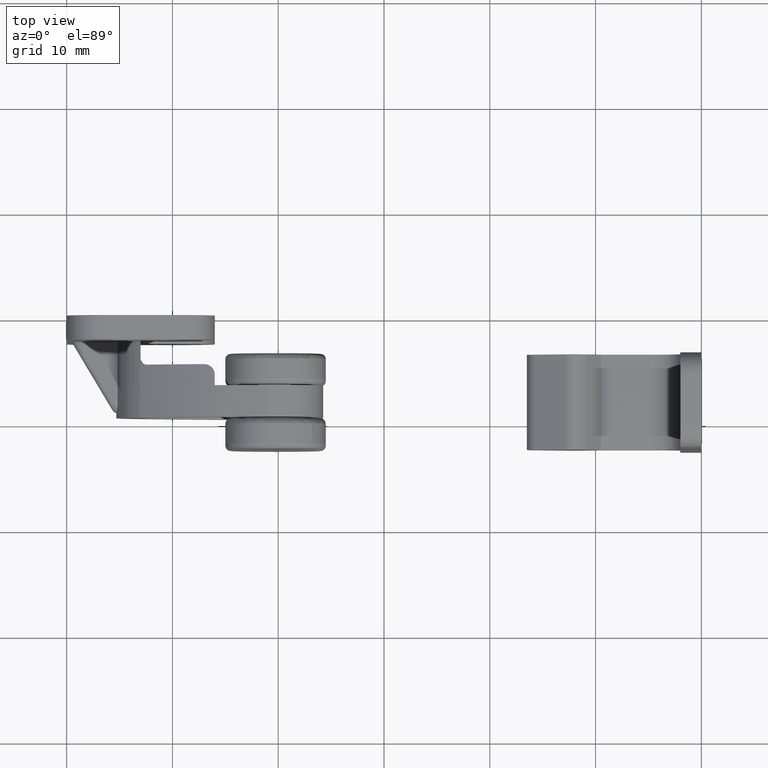
[diagram: clean part render]
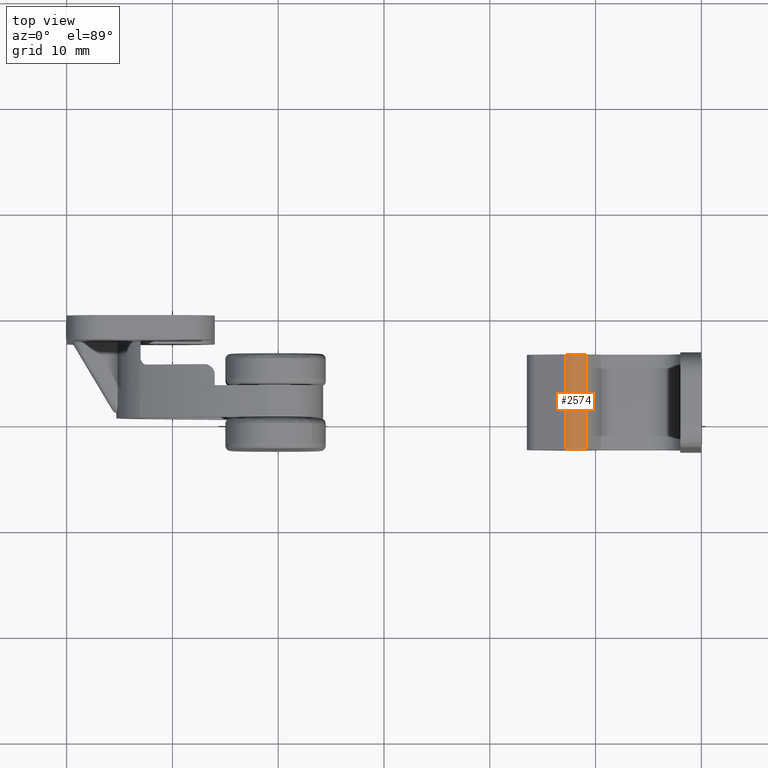
[diagram: same view with one face highlighted and labeled with its STEP entity id]
A machine part, top view. The second image highlights one B-rep face of the part: STEP entity #2574.
In plain terms, the highlighted face is a freeform B-spline surface patch.
Its self-contained STEP definition (entity closure, byte-faithful):
#2101=CARTESIAN_POINT('',(49.103000000011697,-12.500000000000000,2.866999999987180));
#2102=VERTEX_POINT('',#2101);
#2108=CARTESIAN_POINT('',(47.213000000000001,-12.500000000000000,3.127000000000000));
#2109=VERTEX_POINT('',#2108);
#2110=CARTESIAN_POINT('',(49.103000000011697,-12.500000000000000,2.866999999987180));
#2111=CARTESIAN_POINT('',(49.015425655600588,-12.500000000000011,2.962030086219386));
#2112=CARTESIAN_POINT('',(48.790543214986322,-12.499999999999980,3.150211976446864));
#2113=CARTESIAN_POINT('',(48.419708123942712,-12.499999999999989,3.309635170754846));
#2114=CARTESIAN_POINT('',(48.022630408236481,-12.500000000000030,3.364189070364756));
#2115=CARTESIAN_POINT('',(47.622853832958739,-12.499999999999980,3.324014016163876));
#2116=CARTESIAN_POINT('',(47.350456401243193,-12.500000000000020,3.211870597523483));
#2117=CARTESIAN_POINT('',(47.213000000000001,-12.500000000000000,3.127000000000000));
#2118=B_SPLINE_CURVE_WITH_KNOTS('',3,(#2110,#2111,#2112,#2113,#2114,#2115,#2116,#2117),.UNSPECIFIED.,.F.,.U.,(4,1,1,1,1,4),(0.000000056161208,0.387698793699524,0.872335217697468,1.195394351094162,1.583106022344364,2.067728500601724),.UNSPECIFIED.);
#2119=EDGE_CURVE('',#2102,#2109,#2118,.T.);
#2280=CARTESIAN_POINT('',(47.213000000000001,-3.500000000000060,3.127000000000000));
#2281=VERTEX_POINT('',#2280);
#2287=CARTESIAN_POINT('',(49.103000000011697,-3.500000000000060,2.866999999987180));
#2288=VERTEX_POINT('',#2287);
#2289=CARTESIAN_POINT('',(49.103000000011697,-3.500000000000060,2.866999999987180));
#2290=CARTESIAN_POINT('',(49.015425586902367,-3.500000000000062,2.962029976679141));
#2291=CARTESIAN_POINT('',(48.790543308080181,-3.500000000000058,3.150212164970654));
#2292=CARTESIAN_POINT('',(48.419708093211582,-3.500000000000056,3.309635097330011));
#2293=CARTESIAN_POINT('',(48.022630410189159,-3.500000000000065,3.364189084048189));
#2294=CARTESIAN_POINT('',(47.622853836795649,-3.500000000000055,3.324014014718240));
#2295=CARTESIAN_POINT('',(47.350456399875142,-3.500000000000066,3.211870598047015));
#2296=CARTESIAN_POINT('',(47.213000000000001,-3.500000000000060,3.127000000000000));
#2297=B_SPLINE_CURVE_WITH_KNOTS('',3,(#2289,#2290,#2291,#2292,#2293,#2294,#2295,#2296),.UNSPECIFIED.,.F.,.U.,(4,1,1,1,1,4),(0.000000056161208,0.387698793699524,0.872335217697468,1.195394351094162,1.583106022344364,2.067728500601724),.UNSPECIFIED.);
#2298=EDGE_CURVE('',#2288,#2281,#2297,.T.);
#2540=CARTESIAN_POINT('',(47.213000000000001,-3.500000000000060,3.127000000000000));
#2541=CARTESIAN_POINT('',(47.213000000000001,-12.500000000000000,3.127000000000000));
#2542=QUASI_UNIFORM_CURVE('',1,(#2540,#2541),.UNSPECIFIED.,.F.,.U.);
#2543=EDGE_CURVE('',#2281,#2109,#2542,.T.);
#2550=CARTESIAN_POINT('',(47.179568422045200,-3.275000000000061,3.105769591188229));
#2551=CARTESIAN_POINT('',(47.179568422045200,-12.730625000000000,3.105769591188229));
#2552=CARTESIAN_POINT('',(48.312589422759899,-3.275000000000061,3.846454001741929));
#2553=CARTESIAN_POINT('',(48.312589422759899,-12.730624999999998,3.846454001741929));
#2554=CARTESIAN_POINT('',(49.165207123594008,-3.275000000000061,2.795077266065240));
#2555=CARTESIAN_POINT('',(49.165207123594008,-12.730625000000003,2.795077266065240));
#2563=(BOUNDED_SURFACE()B_SPLINE_SURFACE(1,2,((#2550,#2552,#2554),(#2551,#2553,#2555)),.UNSPECIFIED.,.F.,.F.,.U.)B_SPLINE_SURFACE_WITH_KNOTS((2,2),(3,3),(0.0,9.455624999999937),(0.0,2.306970254369087),.UNSPECIFIED.)GEOMETRIC_REPRESENTATION_ITEM()RATIONAL_B_SPLINE_SURFACE(((1.0,0.740210307781911,0.994199543984566),(1.0,0.740210307781911,0.994199543984566)))REPRESENTATION_ITEM('')SURFACE());
#2564=ORIENTED_EDGE('',*,*,#2119,.F.);
#2565=CARTESIAN_POINT('',(49.103000000011697,-3.500000000000060,2.866999999987180));
#2566=CARTESIAN_POINT('',(49.103000000011697,-12.500000000000000,2.866999999987180));
#2567=QUASI_UNIFORM_CURVE('',1,(#2565,#2566),.UNSPECIFIED.,.F.,.U.);
#2568=EDGE_CURVE('',#2288,#2102,#2567,.T.);
#2569=ORIENTED_EDGE('',*,*,#2568,.F.);
#2570=ORIENTED_EDGE('',*,*,#2298,.T.);
#2571=ORIENTED_EDGE('',*,*,#2543,.T.);
#2572=EDGE_LOOP('',(#2564,#2569,#2570,#2571));
#2573=FACE_OUTER_BOUND('',#2572,.T.);
#2574=ADVANCED_FACE('',(#2573),#2563,.T.);